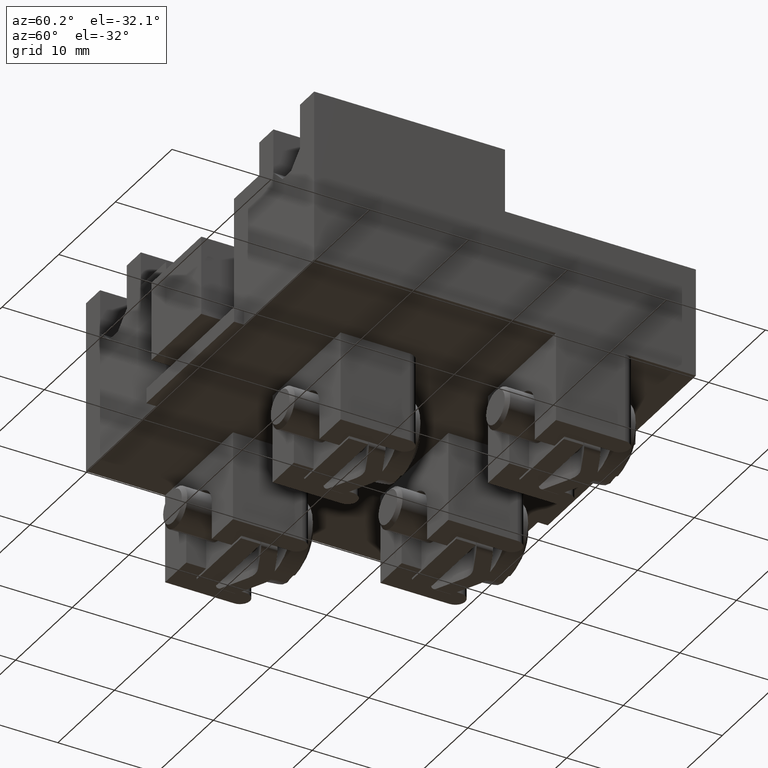
[diagram: clean part render]
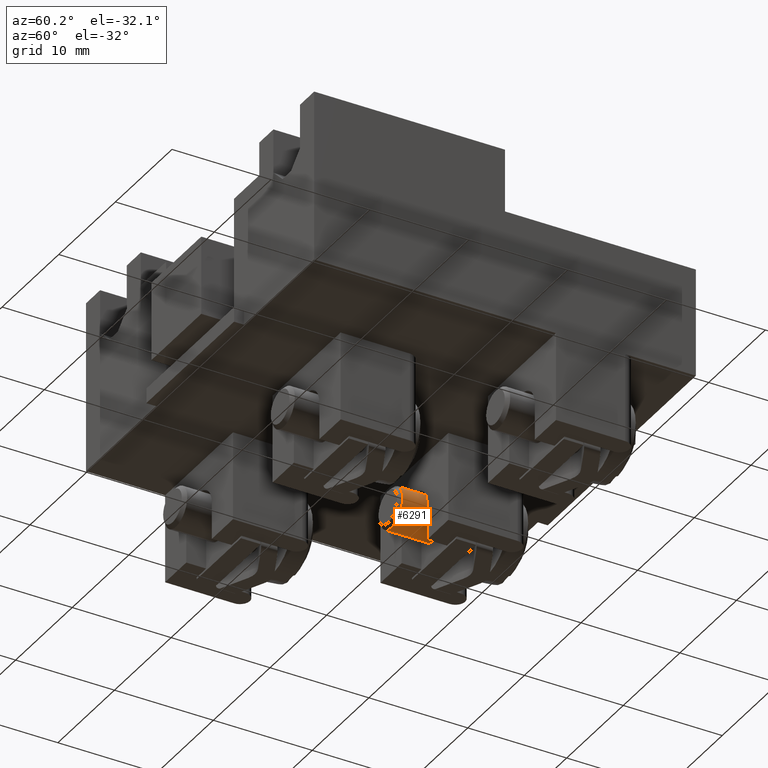
[diagram: same view with one face highlighted and labeled with its STEP entity id]
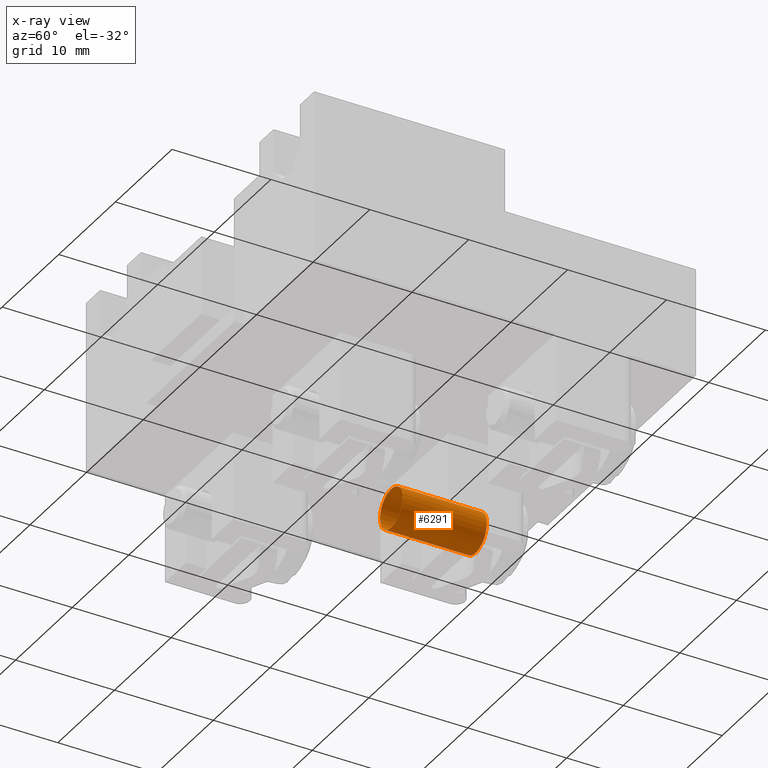
[diagram: x-ray of the same camera — body ghosted, the highlighted face saturated]
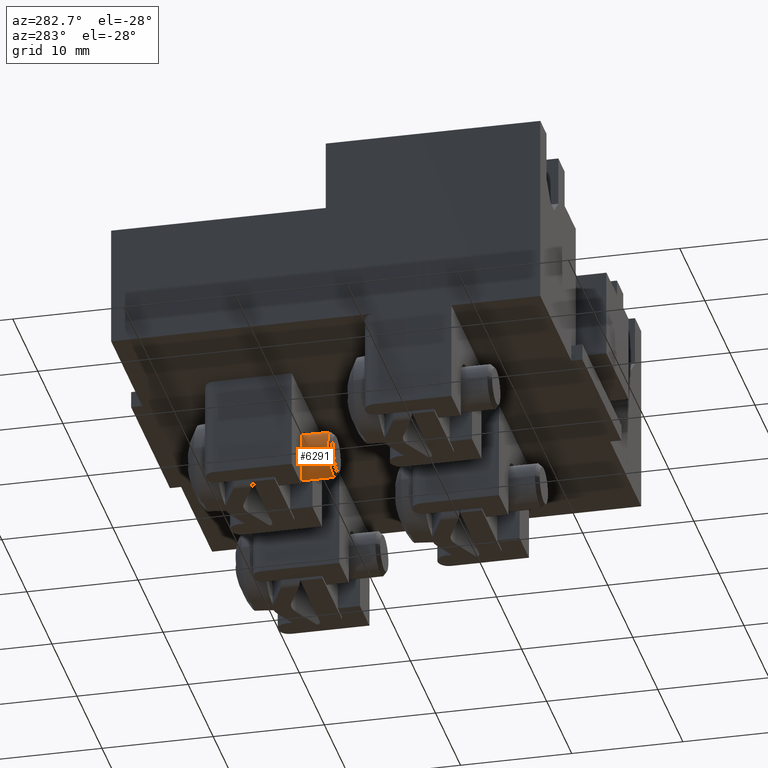
[diagram: same view with one face highlighted and labeled with its STEP entity id]
A machine part, auxiliary view. The second image highlights one B-rep face of the part: STEP entity #6291.
The next image is the same camera in x-ray: the body ghosted, the highlighted face saturated — about 0% of this face is hidden behind the body in this view.
A second angle (auxiliary view) of the same face is appended — the face is thin or edge-on in the first view.
In plain terms, the highlighted cylindrical surface (bore or boss wall) has radius 2 mm, axis along (-0, -1, 0).
Its self-contained STEP definition (entity closure, byte-faithful):
#6249=CARTESIAN_POINT('',(-1.999999999999999,2.449213E-016,-9.650000000000000));
#6250=VERTEX_POINT('',#6249);
#6251=CARTESIAN_POINT('',(2.932665E-017,0.0,-9.650000000000000));
#6252=DIRECTION('',(0.0,0.0,-1.0));
#6253=DIRECTION('',(1.0,0.0,0.0));
#6254=AXIS2_PLACEMENT_3D('',#6251,#6252,#6253);
#6255=CIRCLE('',#6254,1.999999999999999);
#6256=EDGE_CURVE('',#6250,#6250,#6255,.T.);
#6272=CARTESIAN_POINT('',(3.720295E-016,0.0,-5.560000000000000));
#6273=DIRECTION('',(-8.379042E-017,0.0,-1.0));
#6274=DIRECTION('',(-1.0,0.0,0.0));
#6275=AXIS2_PLACEMENT_3D('',#6272,#6273,#6274);
#6276=CYLINDRICAL_SURFACE('',#6275,1.999999999999999);
#6277=CARTESIAN_POINT('',(-1.999999999999998,0.0,-1.119999999999999));
#6278=VERTEX_POINT('',#6277);
#6279=CARTESIAN_POINT('',(7.440589E-016,0.0,-1.119999999999999));
#6280=DIRECTION('',(0.0,0.0,-1.0));
#6281=DIRECTION('',(-1.0,0.0,0.0));
#6282=AXIS2_PLACEMENT_3D('',#6279,#6280,#6281);
#6283=CIRCLE('',#6282,1.999999999999999);
#6284=EDGE_CURVE('',#6278,#6278,#6283,.T.);
#6285=ORIENTED_EDGE('',*,*,#6284,.T.);
#6286=EDGE_LOOP('',(#6285));
#6287=FACE_OUTER_BOUND('',#6286,.T.);
#6288=ORIENTED_EDGE('',*,*,#6256,.F.);
#6289=EDGE_LOOP('',(#6288));
#6290=FACE_BOUND('',#6289,.T.);
#6291=ADVANCED_FACE('',(#6287,#6290),#6276,.T.);